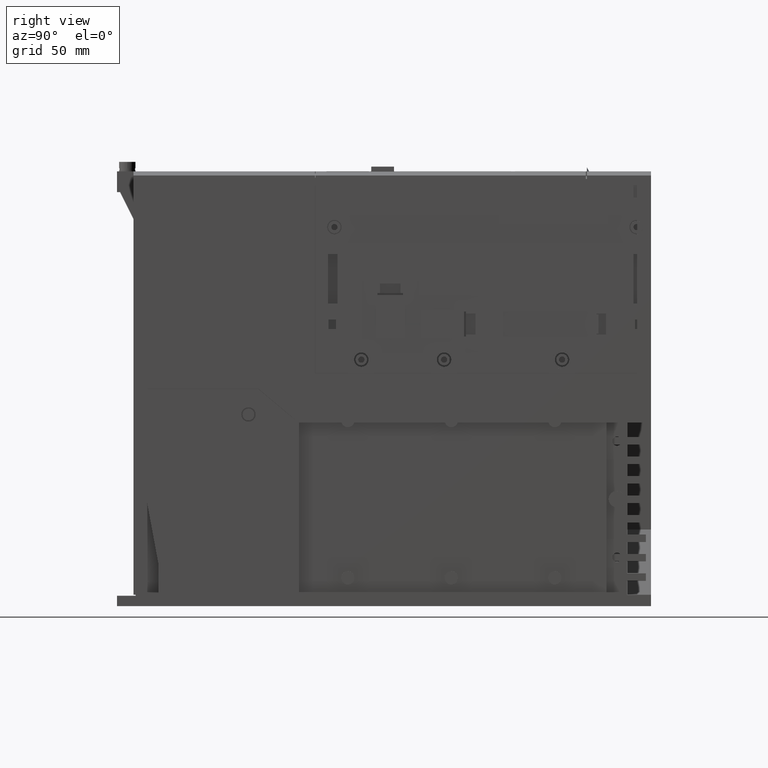
[diagram: clean part render]
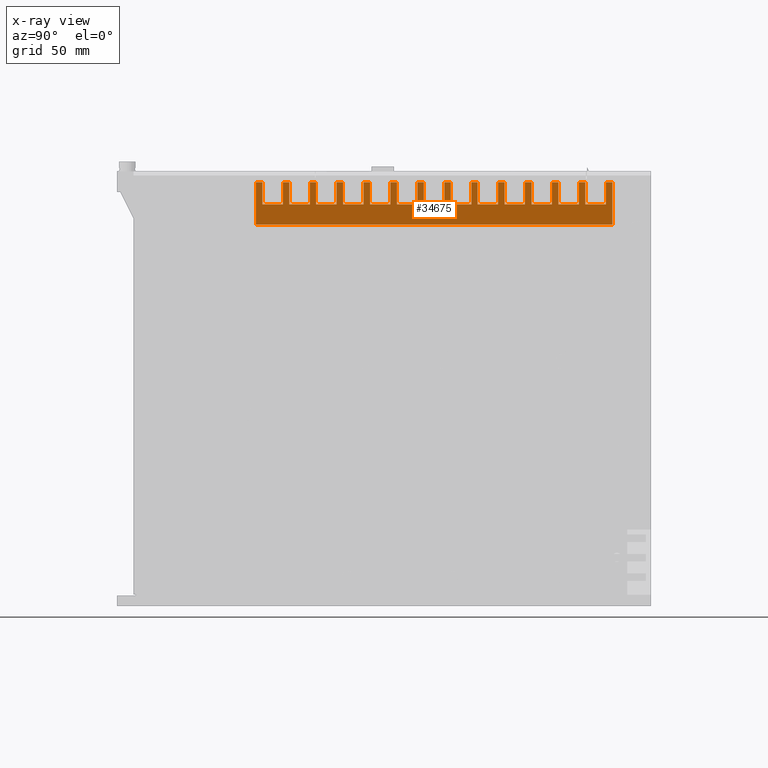
[diagram: x-ray — body ghosted, one internal face saturated and labeled with its STEP entity id]
A machine part, right view, then the same camera in x-ray: the body is ghosted and one INTERNAL B-rep face — a face not visible from any outside direction — is saturated and labeled: STEP entity #34675.
In plain terms, the highlighted planar face has unit normal (-1, -0, 0).
Its self-contained STEP definition (entity closure, byte-faithful):
#9121=ORIENTED_EDGE('',*,*,#13271,.F.);
#9122=ORIENTED_EDGE('',*,*,#13431,.F.);
#9123=ORIENTED_EDGE('',*,*,#14372,.F.);
#9124=ORIENTED_EDGE('',*,*,#10619,.T.);
#9125=ORIENTED_EDGE('',*,*,#11051,.T.);
#9126=ORIENTED_EDGE('',*,*,#14464,.F.);
#9127=ORIENTED_EDGE('',*,*,#12801,.F.);
#9128=ORIENTED_EDGE('',*,*,#14790,.F.);
#9129=ORIENTED_EDGE('',*,*,#13183,.F.);
#9130=ORIENTED_EDGE('',*,*,#11241,.F.);
#9131=ORIENTED_EDGE('',*,*,#13015,.F.);
#9132=ORIENTED_EDGE('',*,*,#13398,.T.);
#9133=ORIENTED_EDGE('',*,*,#13237,.F.);
#9134=ORIENTED_EDGE('',*,*,#10957,.F.);
#9135=ORIENTED_EDGE('',*,*,#12521,.F.);
#9136=ORIENTED_EDGE('',*,*,#13190,.T.);
#9137=ORIENTED_EDGE('',*,*,#12821,.F.);
#9138=ORIENTED_EDGE('',*,*,#13000,.F.);
#9139=ORIENTED_EDGE('',*,*,#13529,.F.);
#9140=ORIENTED_EDGE('',*,*,#13866,.T.);
#9141=ORIENTED_EDGE('',*,*,#12312,.F.);
#9142=ORIENTED_EDGE('',*,*,#11099,.F.);
#9143=ORIENTED_EDGE('',*,*,#10601,.F.);
#9144=ORIENTED_EDGE('',*,*,#14677,.T.);
#9145=ORIENTED_EDGE('',*,*,#13857,.F.);
#9146=ORIENTED_EDGE('',*,*,#14824,.F.);
#9147=ORIENTED_EDGE('',*,*,#14182,.F.);
#9148=ORIENTED_EDGE('',*,*,#14077,.T.);
#9149=ORIENTED_EDGE('',*,*,#14590,.F.);
#9150=ORIENTED_EDGE('',*,*,#13879,.F.);
#9151=ORIENTED_EDGE('',*,*,#14612,.F.);
#9152=ORIENTED_EDGE('',*,*,#14052,.T.);
#9153=ORIENTED_EDGE('',*,*,#13894,.F.);
#9154=ORIENTED_EDGE('',*,*,#11344,.F.);
#9155=ORIENTED_EDGE('',*,*,#14609,.F.);
#9156=ORIENTED_EDGE('',*,*,#13538,.T.);
#9157=ORIENTED_EDGE('',*,*,#12974,.F.);
#9158=ORIENTED_EDGE('',*,*,#11657,.F.);
#9159=ORIENTED_EDGE('',*,*,#10484,.F.);
#9160=ORIENTED_EDGE('',*,*,#13070,.T.);
#9161=ORIENTED_EDGE('',*,*,#13477,.F.);
#9162=ORIENTED_EDGE('',*,*,#14597,.F.);
#9163=ORIENTED_EDGE('',*,*,#10689,.F.);
#9164=ORIENTED_EDGE('',*,*,#11521,.T.);
#9165=ORIENTED_EDGE('',*,*,#14603,.F.);
#9166=ORIENTED_EDGE('',*,*,#13824,.F.);
#9167=ORIENTED_EDGE('',*,*,#13964,.F.);
#9168=ORIENTED_EDGE('',*,*,#13100,.T.);
#9169=ORIENTED_EDGE('',*,*,#13060,.F.);
#9170=ORIENTED_EDGE('',*,*,#13382,.F.);
#9171=ORIENTED_EDGE('',*,*,#12829,.F.);
#9172=ORIENTED_EDGE('',*,*,#12191,.T.);
#9173=ORIENTED_EDGE('',*,*,#13110,.F.);
#9174=ORIENTED_EDGE('',*,*,#14801,.F.);
#9175=ORIENTED_EDGE('',*,*,#12884,.F.);
#9176=ORIENTED_EDGE('',*,*,#14592,.T.);
#10484=EDGE_CURVE('',#15115,#15116,#18388,.T.);
#10601=EDGE_CURVE('',#15231,#15232,#18498,.T.);
#10619=EDGE_CURVE('',#15246,#15249,#18514,.T.);
#10689=EDGE_CURVE('',#15318,#15319,#18577,.T.);
#10957=EDGE_CURVE('',#15572,#15570,#18812,.T.);
#11051=EDGE_CURVE('',#15249,#15663,#18895,.T.);
#11099=EDGE_CURVE('',#15232,#15707,#18941,.T.);
#11241=EDGE_CURVE('',#15835,#15833,#19067,.T.);
#11344=EDGE_CURVE('',#15929,#15927,#19155,.T.);
#11521=EDGE_CURVE('',#15318,#16088,#19298,.T.);
#11657=EDGE_CURVE('',#15116,#16204,#19417,.T.);
#12191=EDGE_CURVE('',#16654,#16656,#19873,.T.);
#12312=EDGE_CURVE('',#15707,#16745,#19987,.T.);
#12521=EDGE_CURVE('',#16899,#15572,#20172,.T.);
#12801=EDGE_CURVE('',#17085,#17086,#20428,.T.);
#12821=EDGE_CURVE('',#17101,#17092,#20448,.T.);
#12829=EDGE_CURVE('',#16654,#17108,#20454,.T.);
#12884=EDGE_CURVE('',#17142,#17143,#20506,.T.);
#12974=EDGE_CURVE('',#16204,#17193,#20588,.T.);
#13000=EDGE_CURVE('',#17217,#17101,#20612,.T.);
#13015=EDGE_CURVE('',#17227,#15835,#20625,.T.);
#13060=EDGE_CURVE('',#17257,#17249,#20668,.T.);
#13070=EDGE_CURVE('',#15115,#17265,#20677,.T.);
#13100=EDGE_CURVE('',#17284,#17249,#20705,.T.);
#13110=EDGE_CURVE('',#17289,#16656,#20715,.T.);
#13183=EDGE_CURVE('',#15833,#17335,#20777,.T.);
#13190=EDGE_CURVE('',#16899,#17092,#20783,.T.);
#13237=EDGE_CURVE('',#15570,#17366,#20825,.T.);
#13271=EDGE_CURVE('',#17395,#17390,#20859,.T.);
#13382=EDGE_CURVE('',#17108,#17257,#20963,.T.);
#13398=EDGE_CURVE('',#17227,#17366,#20979,.T.);
#13431=EDGE_CURVE('',#17491,#17395,#21009,.T.);
#13477=EDGE_CURVE('',#17518,#17265,#21054,.T.);
#13529=EDGE_CURVE('',#17548,#17217,#21103,.T.);
#13538=EDGE_CURVE('',#17554,#17193,#21112,.T.);
#13824=EDGE_CURVE('',#17693,#17692,#21384,.T.);
#13857=EDGE_CURVE('',#17713,#17714,#21414,.T.);
#13866=EDGE_CURVE('',#17548,#16745,#21423,.T.);
#13879=EDGE_CURVE('',#17727,#17726,#21431,.T.);
#13894=EDGE_CURVE('',#15927,#17733,#21446,.T.);
#13964=EDGE_CURVE('',#17284,#17693,#21507,.T.);
#14052=EDGE_CURVE('',#17815,#17733,#21587,.T.);
#14077=EDGE_CURVE('',#17826,#17828,#21610,.T.);
#14182=EDGE_CURVE('',#17826,#17885,#21709,.T.);
#14372=EDGE_CURVE('',#15246,#17491,#21877,.T.);
#14464=EDGE_CURVE('',#17086,#15663,#21961,.T.);
#14590=EDGE_CURVE('',#17726,#17828,#22072,.T.);
#14592=EDGE_CURVE('',#17142,#17390,#22074,.T.);
#14597=EDGE_CURVE('',#15319,#17518,#22079,.T.);
#14603=EDGE_CURVE('',#17692,#16088,#22085,.T.);
#14609=EDGE_CURVE('',#17554,#15929,#22091,.T.);
#14612=EDGE_CURVE('',#17815,#17727,#22094,.T.);
#14677=EDGE_CURVE('',#15231,#17714,#22148,.T.);
#14790=EDGE_CURVE('',#17335,#17085,#22250,.T.);
#14801=EDGE_CURVE('',#17143,#17289,#22260,.T.);
#14824=EDGE_CURVE('',#17885,#17713,#22281,.T.);
#15115=VERTEX_POINT('',#46982);
#15116=VERTEX_POINT('',#46984);
#15231=VERTEX_POINT('',#47234);
#15232=VERTEX_POINT('',#47236);
#15246=VERTEX_POINT('',#47267);
#15249=VERTEX_POINT('',#47273);
#15318=VERTEX_POINT('',#47430);
#15319=VERTEX_POINT('',#47432);
#15570=VERTEX_POINT('',#47999);
#15572=VERTEX_POINT('',#48003);
#15663=VERTEX_POINT('',#48213);
#15707=VERTEX_POINT('',#48313);
#15833=VERTEX_POINT('',#48611);
#15835=VERTEX_POINT('',#48615);
#15927=VERTEX_POINT('',#48831);
#15929=VERTEX_POINT('',#48835);
#16088=VERTEX_POINT('',#49199);
#16204=VERTEX_POINT('',#49485);
#16654=VERTEX_POINT('',#50579);
#16656=VERTEX_POINT('',#50583);
#16745=VERTEX_POINT('',#50823);
#16899=VERTEX_POINT('',#51241);
#17085=VERTEX_POINT('',#51791);
#17086=VERTEX_POINT('',#51793);
#17092=VERTEX_POINT('',#51812);
#17101=VERTEX_POINT('',#51830);
#17108=VERTEX_POINT('',#51848);
#17142=VERTEX_POINT('',#51952);
#17143=VERTEX_POINT('',#51954);
#17193=VERTEX_POINT('',#52106);
#17217=VERTEX_POINT('',#52173);
#17227=VERTEX_POINT('',#52203);
#17249=VERTEX_POINT('',#52271);
#17257=VERTEX_POINT('',#52287);
#17265=VERTEX_POINT('',#52309);
#17284=VERTEX_POINT('',#52369);
#17289=VERTEX_POINT('',#52388);
#17335=VERTEX_POINT('',#52516);
#17366=VERTEX_POINT('',#52623);
#17390=VERTEX_POINT('',#52691);
#17395=VERTEX_POINT('',#52702);
#17491=VERTEX_POINT('',#53003);
#17518=VERTEX_POINT('',#53089);
#17548=VERTEX_POINT('',#53195);
#17554=VERTEX_POINT('',#53212);
#17692=VERTEX_POINT('',#53744);
#17693=VERTEX_POINT('',#53746);
#17713=VERTEX_POINT('',#53815);
#17714=VERTEX_POINT('',#53817);
#17726=VERTEX_POINT('',#53859);
#17727=VERTEX_POINT('',#53861);
#17733=VERTEX_POINT('',#53883);
#17815=VERTEX_POINT('',#54214);
#17826=VERTEX_POINT('',#54261);
#17828=VERTEX_POINT('',#54265);
#17885=VERTEX_POINT('',#54474);
#18388=LINE('',#46983,#22623);
#18498=LINE('',#47235,#22733);
#18514=LINE('',#47274,#22749);
#18577=LINE('',#47431,#22812);
#18812=LINE('',#48004,#23047);
#18895=LINE('',#48214,#23130);
#18941=LINE('',#48315,#23176);
#19067=LINE('',#48616,#23302);
#19155=LINE('',#48836,#23390);
#19298=LINE('',#49200,#23533);
#19417=LINE('',#49487,#23652);
#19873=LINE('',#50584,#24108);
#19987=LINE('',#50822,#24222);
#20172=LINE('',#51242,#24407);
#20428=LINE('',#51792,#24663);
#20448=LINE('',#51831,#24683);
#20454=LINE('',#51847,#24689);
#20506=LINE('',#51953,#24741);
#20588=LINE('',#52122,#24823);
#20612=LINE('',#52174,#24847);
#20625=LINE('',#52204,#24860);
#20668=LINE('',#52288,#24903);
#20677=LINE('',#52310,#24912);
#20705=LINE('',#52371,#24940);
#20715=LINE('',#52389,#24950);
#20777=LINE('',#52527,#25012);
#20783=LINE('',#52541,#25018);
#20825=LINE('',#52634,#25060);
#20859=LINE('',#52703,#25094);
#20963=LINE('',#52906,#25198);
#20979=LINE('',#52935,#25214);
#21009=LINE('',#53004,#25244);
#21054=LINE('',#53090,#25289);
#21103=LINE('',#53196,#25338);
#21112=LINE('',#53214,#25347);
#21384=LINE('',#53747,#25619);
#21414=LINE('',#53816,#25649);
#21423=LINE('',#53833,#25658);
#21431=LINE('',#53862,#25666);
#21446=LINE('',#53889,#25681);
#21507=LINE('',#54036,#25742);
#21587=LINE('',#54215,#25822);
#21610=LINE('',#54266,#25845);
#21709=LINE('',#54473,#25944);
#21877=LINE('',#54852,#26112);
#21961=LINE('',#55038,#26196);
#22072=LINE('',#55308,#26307);
#22074=LINE('',#55311,#26309);
#22079=LINE('',#55321,#26314);
#22085=LINE('',#55335,#26320);
#22091=LINE('',#55345,#26326);
#22094=LINE('',#55350,#26329);
#22148=LINE('',#55502,#26383);
#22250=LINE('',#55787,#26485);
#22260=LINE('',#55814,#26495);
#22281=LINE('',#55884,#26516);
#22623=VECTOR('',#37850,1000.);
#22733=VECTOR('',#38012,1000.);
#22749=VECTOR('',#38038,1000.);
#22812=VECTOR('',#38151,1000.);
#23047=VECTOR('',#38554,1000.);
#23130=VECTOR('',#38709,1000.);
#23176=VECTOR('',#38777,1000.);
#23302=VECTOR('',#38997,1000.);
#23390=VECTOR('',#39161,1000.);
#23533=VECTOR('',#39428,1000.);
#23652=VECTOR('',#39651,1000.);
#24108=VECTOR('',#40485,1000.);
#24222=VECTOR('',#40671,1000.);
#24407=VECTOR('',#41016,1000.);
#24663=VECTOR('',#41488,1000.);
#24683=VECTOR('',#41514,1000.);
#24689=VECTOR('',#41528,1000.);
#24741=VECTOR('',#41618,1000.);
#24823=VECTOR('',#41758,1000.);
#24847=VECTOR('',#41804,1000.);
#24860=VECTOR('',#41831,1000.);
#24903=VECTOR('',#41896,1000.);
#24912=VECTOR('',#41915,1000.);
#24940=VECTOR('',#41971,1000.);
#24950=VECTOR('',#41987,1000.);
#25012=VECTOR('',#42101,1000.);
#25018=VECTOR('',#42117,1000.);
#25060=VECTOR('',#42205,1000.);
#25094=VECTOR('',#42259,1000.);
#25198=VECTOR('',#42425,1000.);
#25214=VECTOR('',#42453,1000.);
#25244=VECTOR('',#42519,1000.);
#25289=VECTOR('',#42592,1000.);
#25338=VECTOR('',#42695,1000.);
#25347=VECTOR('',#42710,1000.);
#25619=VECTOR('',#43226,1000.);
#25649=VECTOR('',#43294,1000.);
#25658=VECTOR('',#43307,1000.);
#25666=VECTOR('',#43341,1000.);
#25681=VECTOR('',#43366,1000.);
#25742=VECTOR('',#43531,1000.);
#25822=VECTOR('',#43715,1000.);
#25845=VECTOR('',#43768,1000.);
#25944=VECTOR('',#43971,1000.);
#26112=VECTOR('',#44427,1000.);
#26196=VECTOR('',#44651,1000.);
#26307=VECTOR('',#44982,1000.);
#26309=VECTOR('',#44986,1000.);
#26314=VECTOR('',#45001,1000.);
#26320=VECTOR('',#45023,1000.);
#26326=VECTOR('',#45037,1000.);
#26329=VECTOR('',#45044,1000.);
#26383=VECTOR('',#45250,1000.);
#26485=VECTOR('',#45656,1000.);
#26495=VECTOR('',#45700,1000.);
#26516=VECTOR('',#45807,1000.);
#28673=EDGE_LOOP('',(#9121,#9122,#9123,#9124,#9125,#9126,#9127,#9128,#9129,
#9130,#9131,#9132,#9133,#9134,#9135,#9136,#9137,#9138,#9139,#9140,#9141,
#9142,#9143,#9144,#9145,#9146,#9147,#9148,#9149,#9150,#9151,#9152,#9153,
#9154,#9155,#9156,#9157,#9158,#9159,#9160,#9161,#9162,#9163,#9164,#9165,
#9166,#9167,#9168,#9169,#9170,#9171,#9172,#9173,#9174,#9175,#9176));
#31016=FACE_BOUND('',#28673,.T.);
#32786=PLANE('',#37096);
#34675=ADVANCED_FACE('',(#31016),#32786,.F.);
#37096=AXIS2_PLACEMENT_3D('',#55910,#45850,#45851);
#37850=DIRECTION('',(0.,1.,0.));
#38012=DIRECTION('',(0.,1.,0.));
#38038=DIRECTION('',(0.,0.,-1.));
#38151=DIRECTION('',(0.,1.,0.));
#38554=DIRECTION('',(0.,0.,-1.));
#38709=DIRECTION('',(-1.00807505400198E-14,1.,0.));
#38777=DIRECTION('',(0.,0.,-1.));
#38997=DIRECTION('',(0.,0.,-1.));
#39161=DIRECTION('',(0.,0.,-1.));
#39428=DIRECTION('',(0.,0.,-1.));
#39651=DIRECTION('',(0.,0.,-1.));
#40485=DIRECTION('',(0.,0.,-1.));
#40671=DIRECTION('',(-1.00834703946096E-14,1.,0.));
#41016=DIRECTION('',(0.,1.,0.));
#41488=DIRECTION('',(-1.00807505400198E-14,1.,0.));
#41514=DIRECTION('',(-1.00834703946096E-14,1.,0.));
#41528=DIRECTION('',(0.,1.,0.));
#41618=DIRECTION('',(0.,1.,0.));
#41758=DIRECTION('',(-1.00834703946096E-14,1.,0.));
#41804=DIRECTION('',(0.,0.,-1.));
#41831=DIRECTION('',(0.,1.,0.));
#41896=DIRECTION('',(-1.00834703946096E-14,1.,0.));
#41915=DIRECTION('',(0.,0.,-1.));
#41971=DIRECTION('',(0.,0.,-1.));
#41987=DIRECTION('',(-1.00834703946096E-14,1.,0.));
#42101=DIRECTION('',(-1.00834703946096E-14,1.,0.));
#42117=DIRECTION('',(0.,0.,-1.));
#42205=DIRECTION('',(-1.00834703946096E-14,1.,0.));
#42259=DIRECTION('',(-1.00834703946096E-14,1.,0.));
#42425=DIRECTION('',(0.,0.,-1.));
#42453=DIRECTION('',(0.,0.,-1.));
#42519=DIRECTION('',(0.,0.,-1.));
#42592=DIRECTION('',(-1.00834703946096E-14,1.,0.));
#42695=DIRECTION('',(0.,1.,0.));
#42710=DIRECTION('',(0.,0.,-1.));
#43226=DIRECTION('',(0.,0.,-1.));
#43294=DIRECTION('',(-1.00834703946096E-14,1.,0.));
#43307=DIRECTION('',(0.,0.,-1.));
#43341=DIRECTION('',(0.,0.,-1.));
#43366=DIRECTION('',(-1.00834703946096E-14,1.,0.));
#43531=DIRECTION('',(0.,1.,0.));
#43715=DIRECTION('',(0.,0.,-1.));
#43768=DIRECTION('',(0.,0.,-1.));
#43971=DIRECTION('',(0.,1.,0.));
#44427=DIRECTION('',(-1.00807505400198E-14,1.,0.));
#44651=DIRECTION('',(0.,0.,-1.));
#44982=DIRECTION('',(-1.00834703946096E-14,1.,0.));
#44986=DIRECTION('',(0.,0.,-1.));
#45001=DIRECTION('',(0.,0.,-1.));
#45023=DIRECTION('',(-1.00834703946096E-14,1.,0.));
#45037=DIRECTION('',(0.,1.,0.));
#45044=DIRECTION('',(0.,1.,0.));
#45250=DIRECTION('',(0.,0.,-1.));
#45656=DIRECTION('',(0.,0.,1.));
#45700=DIRECTION('',(0.,0.,-1.));
#45807=DIRECTION('',(0.,0.,-1.));
#45850=DIRECTION('',(-1.,-8.07505400198677E-17,0.));
#45851=DIRECTION('',(-8.07505400198677E-17,1.,0.));
#46982=CARTESIAN_POINT('',(-78.2000000000067,-119.870000000007,204.700000000007));
#46983=CARTESIAN_POINT('',(-78.20000000001,-116.77000000001,204.70000000001));
#46984=CARTESIAN_POINT('',(-78.2000000000067,-116.770000000007,204.700000000007));
#47234=CARTESIAN_POINT('',(-78.2000000000067,-67.8700000000066,204.700000000007));
#47235=CARTESIAN_POINT('',(-78.20000000001,-64.77000000001,204.70000000001));
#47236=CARTESIAN_POINT('',(-78.2,-64.77,204.7));
#47267=CARTESIAN_POINT('',(-78.2,-184.87,204.7));
#47273=CARTESIAN_POINT('',(-78.2,-184.87,184.2));
#47274=CARTESIAN_POINT('',(-78.20000000001,-184.87000000001,220.605030650719));
#47430=CARTESIAN_POINT('',(-78.2,-132.87,204.7));
#47431=CARTESIAN_POINT('',(-78.20000000001,-129.77000000001,204.70000000001));
#47432=CARTESIAN_POINT('',(-78.2000000000067,-129.770000000007,204.700000000007));
#47999=CARTESIAN_POINT('',(-78.2000000000066,-38.7700000000067,194.000000000007));
#48003=CARTESIAN_POINT('',(-78.2000000000067,-38.7700000000067,204.700000000007));
#48004=CARTESIAN_POINT('',(-78.2,-38.77,195.3));
#48213=CARTESIAN_POINT('',(-78.2,-12.67,184.2));
#48214=CARTESIAN_POINT('',(-78.20000000001,-12.67000000001,184.20000000001));
#48313=CARTESIAN_POINT('',(-78.2,-64.77,194.));
#48315=CARTESIAN_POINT('',(-78.20000000001,-64.77000000001,220.605030650719));
#48611=CARTESIAN_POINT('',(-78.2,-25.77,194.));
#48615=CARTESIAN_POINT('',(-78.2,-25.77,204.7));
#48616=CARTESIAN_POINT('',(-78.20000000001,-25.77000000001,220.605030650719));
#48831=CARTESIAN_POINT('',(-78.2000000000064,-103.770000000007,194.000000000007));
#48835=CARTESIAN_POINT('',(-78.2000000000067,-103.770000000007,204.700000000007));
#48836=CARTESIAN_POINT('',(-78.2,-103.77,195.3));
#49199=CARTESIAN_POINT('',(-78.2,-132.87,194.));
#49200=CARTESIAN_POINT('',(-78.20000000001,-132.87000000001,220.605030650719));
#49485=CARTESIAN_POINT('',(-78.2000000000063,-116.770000000007,194.000000000007));
#49487=CARTESIAN_POINT('',(-78.2,-116.77,195.3));
#50579=CARTESIAN_POINT('',(-78.2000000000067,-158.870000000007,204.700000000007));
#50583=CARTESIAN_POINT('',(-78.2000000000062,-158.870000000007,194.000000000007));
#50584=CARTESIAN_POINT('',(-78.2,-158.87,382.566565707265));
#50822=CARTESIAN_POINT('',(-78.20000000001,-15.87000000001,194.00000000001));
#50823=CARTESIAN_POINT('',(-78.2,-54.87,194.));
#51241=CARTESIAN_POINT('',(-78.2,-41.87,204.7));
#51242=CARTESIAN_POINT('',(-78.20000000001,-38.77000000001,204.70000000001));
#51791=CARTESIAN_POINT('',(-78.2,-15.87,204.7));
#51792=CARTESIAN_POINT('',(-78.20000000001,-12.67000000001,204.70000000001));
#51793=CARTESIAN_POINT('',(-78.2,-12.67,204.7));
#51812=CARTESIAN_POINT('',(-78.2,-41.87,194.));
#51830=CARTESIAN_POINT('',(-78.2000000000065,-51.7700000000067,194.000000000007));
#51831=CARTESIAN_POINT('',(-78.20000000001,-15.87000000001,194.00000000001));
#51847=CARTESIAN_POINT('',(-78.20000000001,-155.77000000001,204.70000000001));
#51848=CARTESIAN_POINT('',(-78.2000000000067,-155.770000000007,204.700000000007));
#51952=CARTESIAN_POINT('',(-78.2,-171.87,204.7));
#51953=CARTESIAN_POINT('',(-78.20000000001,-168.77000000001,204.70000000001));
#51954=CARTESIAN_POINT('',(-78.2,-168.77,204.7));
#52106=CARTESIAN_POINT('',(-78.2,-106.87,194.));
#52122=CARTESIAN_POINT('',(-78.20000000001,-15.87000000001,194.00000000001));
#52173=CARTESIAN_POINT('',(-78.2000000000067,-51.7700000000067,204.700000000007));
#52174=CARTESIAN_POINT('',(-78.2,-51.77,195.3));
#52203=CARTESIAN_POINT('',(-78.2,-28.87,204.7));
#52204=CARTESIAN_POINT('',(-78.20000000001,-25.77000000001,204.70000000001));
#52271=CARTESIAN_POINT('',(-78.2,-145.87,194.));
#52287=CARTESIAN_POINT('',(-78.2000000000062,-155.770000000007,194.000000000007));
#52288=CARTESIAN_POINT('',(-78.20000000001,-15.87000000001,194.00000000001));
#52309=CARTESIAN_POINT('',(-78.2000000000063,-119.870000000007,194.000000000007));
#52310=CARTESIAN_POINT('',(-78.2,-119.87,382.566565707265));
#52369=CARTESIAN_POINT('',(-78.2,-145.87,204.7));
#52371=CARTESIAN_POINT('',(-78.20000000001,-145.87000000001,220.605030650719));
#52388=CARTESIAN_POINT('',(-78.2,-168.77,194.));
#52389=CARTESIAN_POINT('',(-78.20000000001,-15.87000000001,194.00000000001));
#52516=CARTESIAN_POINT('',(-78.2,-15.87,194.));
#52527=CARTESIAN_POINT('',(-78.20000000001,-15.87000000001,194.00000000001));
#52541=CARTESIAN_POINT('',(-78.20000000001,-41.87000000001,220.605030650719));
#52623=CARTESIAN_POINT('',(-78.2,-28.87,194.));
#52634=CARTESIAN_POINT('',(-78.20000000001,-15.87000000001,194.00000000001));
#52691=CARTESIAN_POINT('',(-78.2,-171.87,194.));
#52702=CARTESIAN_POINT('',(-78.2000000000061,-181.770000000007,194.000000000007));
#52703=CARTESIAN_POINT('',(-78.20000000001,-15.87000000001,194.00000000001));
#52906=CARTESIAN_POINT('',(-78.2,-155.77,195.3));
#52935=CARTESIAN_POINT('',(-78.20000000001,-28.87000000001,220.605030650719));
#53003=CARTESIAN_POINT('',(-78.2000000000061,-181.770000000007,204.700000000007));
#53004=CARTESIAN_POINT('',(-78.2,-181.77,195.3));
#53089=CARTESIAN_POINT('',(-78.2000000000063,-129.770000000007,194.000000000007));
#53090=CARTESIAN_POINT('',(-78.20000000001,-15.87000000001,194.00000000001));
#53195=CARTESIAN_POINT('',(-78.2,-54.87,204.7));
#53196=CARTESIAN_POINT('',(-78.20000000001,-51.77000000001,204.70000000001));
#53212=CARTESIAN_POINT('',(-78.2,-106.87,204.7));
#53214=CARTESIAN_POINT('',(-78.20000000001,-106.87000000001,220.605030650719));
#53744=CARTESIAN_POINT('',(-78.2,-142.77,194.));
#53746=CARTESIAN_POINT('',(-78.2,-142.77,204.7));
#53747=CARTESIAN_POINT('',(-78.20000000001,-142.77000000001,220.605030650719));
#53815=CARTESIAN_POINT('',(-78.2,-77.77,194.));
#53816=CARTESIAN_POINT('',(-78.20000000001,-15.87000000001,194.00000000001));
#53817=CARTESIAN_POINT('',(-78.2000000000065,-67.8700000000066,194.000000000007));
#53833=CARTESIAN_POINT('',(-78.20000000001,-54.87000000001,220.605030650719));
#53859=CARTESIAN_POINT('',(-78.2,-90.77,194.));
#53861=CARTESIAN_POINT('',(-78.2,-90.77,204.7));
#53862=CARTESIAN_POINT('',(-78.20000000001,-90.77000000001,220.605030650719));
#53883=CARTESIAN_POINT('',(-78.2000000000064,-93.8700000000066,194.000000000007));
#53889=CARTESIAN_POINT('',(-78.20000000001,-15.87000000001,194.00000000001));
#54036=CARTESIAN_POINT('',(-78.20000000001,-142.77000000001,204.70000000001));
#54214=CARTESIAN_POINT('',(-78.2000000000067,-93.8700000000066,204.700000000007));
#54215=CARTESIAN_POINT('',(-78.2,-93.87,382.566565707265));
#54261=CARTESIAN_POINT('',(-78.2000000000067,-80.8700000000066,204.700000000007));
#54265=CARTESIAN_POINT('',(-78.2000000000064,-80.8700000000066,194.000000000007));
#54266=CARTESIAN_POINT('',(-78.2,-80.87,382.566565707265));
#54473=CARTESIAN_POINT('',(-78.20000000001,-77.77000000001,204.70000000001));
#54474=CARTESIAN_POINT('',(-78.2,-77.77,204.7));
#54852=CARTESIAN_POINT('',(-78.20000000001,-12.67000000001,204.70000000001));
#55038=CARTESIAN_POINT('',(-78.20000000001,-12.67000000001,382.566565707276));
#55308=CARTESIAN_POINT('',(-78.20000000001,-15.87000000001,194.00000000001));
#55311=CARTESIAN_POINT('',(-78.20000000001,-171.87000000001,220.605030650719));
#55321=CARTESIAN_POINT('',(-78.2,-129.77,195.3));
#55335=CARTESIAN_POINT('',(-78.20000000001,-15.87000000001,194.00000000001));
#55345=CARTESIAN_POINT('',(-78.20000000001,-103.77000000001,204.70000000001));
#55350=CARTESIAN_POINT('',(-78.20000000001,-90.77000000001,204.70000000001));
#55502=CARTESIAN_POINT('',(-78.2,-67.87,382.566565707265));
#55787=CARTESIAN_POINT('',(-78.20000000001,-15.87000000001,194.00000000001));
#55814=CARTESIAN_POINT('',(-78.20000000001,-168.77000000001,220.605030650719));
#55884=CARTESIAN_POINT('',(-78.20000000001,-77.77000000001,220.605030650719));
#55910=CARTESIAN_POINT('',(-78.2,-12.67,382.566565707265));